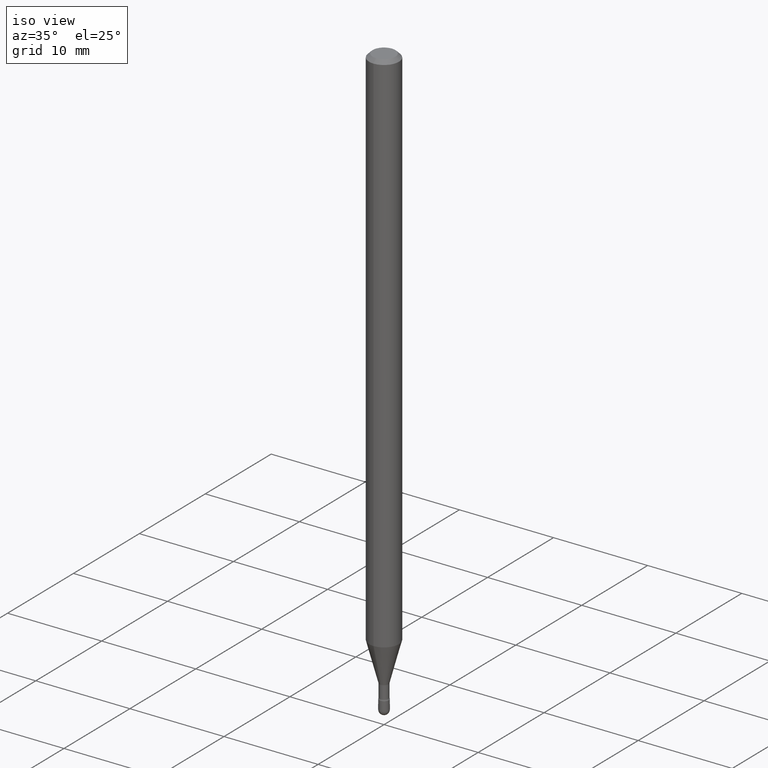
[diagram: clean part render]
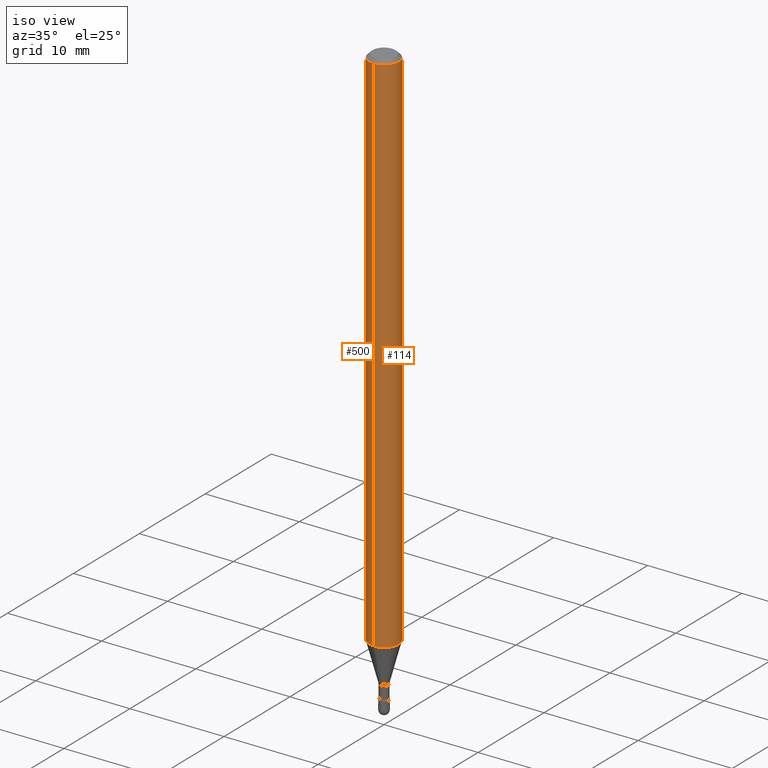
[diagram: same view with one multi-face feature highlighted, each face labeled with its STEP entity id]
A machine part, iso view. The highlighted faces form ONE feature: a constant-radius fillet chain: 2 tangent blend faces with common blend radius 1.5875 mm. The faces share edges in the B-rep.
Their STEP definitions:
[1] entity #500 (Cylinder):
#16 = EDGE_CURVE ( 'NONE', #71, #459, #150, .T. ) ;
#19 = AXIS2_PLACEMENT_3D ( 'NONE', #499, #540, #543 ) ;
#38 = DIRECTION ( 'NONE',  ( -6.982962677686265922E-15, -1.000000000000000000, 4.370956789862821150E-15 ) ) ;
#57 = LINE ( 'NONE', #156, #496 ) ;
#59 = EDGE_CURVE ( 'NONE', #71, #119, #348, .T. ) ;
#64 = CYLINDRICAL_SURFACE ( 'NONE', #19, 0.06250000000000000000 ) ;
#71 = VERTEX_POINT ( 'NONE', #173 ) ;
#72 = DIRECTION ( 'NONE',  ( -6.982962677686265922E-15, -1.000000000000000000, 3.483106191921935554E-15 ) ) ;
#73 = CARTESIAN_POINT ( 'NONE',  ( -4.364351673553912750E-16, -0.06250000000000005551, -0.01499999999999986587 ) ) ;
#80 = CARTESIAN_POINT ( 'NONE',  ( 4.440892098501171462E-16, 0.06249999999999995143, -0.01500000000000030129 ) ) ;
#88 = ORIENTED_EDGE ( 'NONE', *, *, #130, .F. ) ;
#101 = EDGE_CURVE ( 'NONE', #119, #460, #57, .T. ) ;
#117 = VECTOR ( 'NONE', #492, 39.37007874015748143 ) ;
#119 = VERTEX_POINT ( 'NONE', #418 ) ;
#126 = FACE_OUTER_BOUND ( 'NONE', #493, .T. ) ;
#130 = EDGE_CURVE ( 'NONE', #459, #460, #556, .T. ) ;
#150 = LINE ( 'NONE', #315, #117 ) ;
#156 = CARTESIAN_POINT ( 'NONE',  ( -4.364351673553916201E-16, -0.06250000000000000000, 6.962952100205223829E-16 ) ) ;
#173 = CARTESIAN_POINT ( 'NONE',  ( 4.440892098501165545E-16, 0.06249999999999224232, -2.216909379709240735 ) ) ;
#175 = DIRECTION ( 'NONE',  ( -2.445421573966572073E-29, 3.491548978068420720E-15, 1.000000000000000000 ) ) ;
#185 = ORIENTED_EDGE ( 'NONE', *, *, #59, .T. ) ;
#270 = ORIENTED_EDGE ( 'NONE', *, *, #101, .T. ) ;
#315 = CARTESIAN_POINT ( 'NONE',  ( 4.440892098500625669E-16, 0.06250000000000000000, 2.598515877619697929E-16 ) ) ;
#321 = ORIENTED_EDGE ( 'NONE', *, *, #16, .F. ) ;
#323 = DIRECTION ( 'NONE',  ( -2.445421573966572073E-29, 3.491548978068420720E-15, 1.000000000000000000 ) ) ;
#331 = DIRECTION ( 'NONE',  ( -2.445421573966572073E-29, 3.491548978068420720E-15, 1.000000000000000000 ) ) ;
#348 = CIRCLE ( 'NONE', #548, 0.06250000000000000000 ) ;
#370 = CARTESIAN_POINT ( 'NONE',  ( 3.668132360949878113E-31, -5.237323467102660391E-17, -0.01500000000000008271 ) ) ;
#392 = CARTESIAN_POINT ( 'NONE',  ( 5.421278024669828095E-29, -7.740447679194095170E-15, -2.216909379709240735 ) ) ;
#406 = AXIS2_PLACEMENT_3D ( 'NONE', #370, #331, #72 ) ;
#418 = CARTESIAN_POINT ( 'NONE',  ( -4.364351673553375831E-16, -0.06250000000000775768, -2.216909379709240291 ) ) ;
#459 = VERTEX_POINT ( 'NONE', #80 ) ;
#460 = VERTEX_POINT ( 'NONE', #73 ) ;
#492 = DIRECTION ( 'NONE',  ( -2.445421573966572073E-29, 3.491548978068420720E-15, 1.000000000000000000 ) ) ;
#493 = EDGE_LOOP ( 'NONE', ( #321, #185, #270, #88 ) ) ;
#496 = VECTOR ( 'NONE', #323, 39.37007874015748143 ) ;
#499 = CARTESIAN_POINT ( 'NONE',  ( -1.169113584055446105E-44, 1.669184350826100908E-30, 4.780733988912460139E-16 ) ) ;
#500 = ADVANCED_FACE ( 'NONE', ( #126 ), #64, .T. ) ;
#540 = DIRECTION ( 'NONE',  ( -2.445421573966572073E-29, 3.491548978068420720E-15, 1.000000000000000000 ) ) ;
#543 = DIRECTION ( 'NONE',  ( -6.982962677686265922E-15, -1.000000000000000000, 3.491548978068421114E-15 ) ) ;
#548 = AXIS2_PLACEMENT_3D ( 'NONE', #392, #175, #38 ) ;
#556 = CIRCLE ( 'NONE', #406, 0.06250000000000000000 ) ;
[2] entity #114 (Cylinder):
#16 = EDGE_CURVE ( 'NONE', #71, #459, #150, .T. ) ;
#25 = DIRECTION ( 'NONE',  ( -6.982962677686265922E-15, -1.000000000000000000, 4.370956789862821150E-15 ) ) ;
#57 = LINE ( 'NONE', #156, #496 ) ;
#71 = VERTEX_POINT ( 'NONE', #173 ) ;
#73 = CARTESIAN_POINT ( 'NONE',  ( -4.364351673553912750E-16, -0.06250000000000005551, -0.01499999999999986587 ) ) ;
#80 = CARTESIAN_POINT ( 'NONE',  ( 4.440892098501171462E-16, 0.06249999999999995143, -0.01500000000000030129 ) ) ;
#101 = EDGE_CURVE ( 'NONE', #119, #460, #57, .T. ) ;
#113 = EDGE_CURVE ( 'NONE', #460, #459, #206, .T. ) ;
#114 = ADVANCED_FACE ( 'NONE', ( #527 ), #530, .T. ) ;
#117 = VECTOR ( 'NONE', #492, 39.37007874015748143 ) ;
#119 = VERTEX_POINT ( 'NONE', #418 ) ;
#128 = ORIENTED_EDGE ( 'NONE', *, *, #16, .T. ) ;
#135 = ORIENTED_EDGE ( 'NONE', *, *, #387, .T. ) ;
#142 = CARTESIAN_POINT ( 'NONE',  ( -1.169113584055446105E-44, 1.669184350826100908E-30, 4.780733988912460139E-16 ) ) ;
#150 = LINE ( 'NONE', #315, #117 ) ;
#156 = CARTESIAN_POINT ( 'NONE',  ( -4.364351673553916201E-16, -0.06250000000000000000, 6.962952100205223829E-16 ) ) ;
#160 = ORIENTED_EDGE ( 'NONE', *, *, #101, .F. ) ;
#165 = CARTESIAN_POINT ( 'NONE',  ( 5.421278024669828095E-29, -7.740447679194095170E-15, -2.216909379709240735 ) ) ;
#173 = CARTESIAN_POINT ( 'NONE',  ( 4.440892098501165545E-16, 0.06249999999999224232, -2.216909379709240735 ) ) ;
#183 = CARTESIAN_POINT ( 'NONE',  ( 3.668132360949878113E-31, -5.237323467102660391E-17, -0.01500000000000008271 ) ) ;
#190 = AXIS2_PLACEMENT_3D ( 'NONE', #142, #309, #483 ) ;
#206 = CIRCLE ( 'NONE', #414, 0.06250000000000000000 ) ;
#255 = EDGE_LOOP ( 'NONE', ( #135, #128, #432, #160 ) ) ;
#266 = CIRCLE ( 'NONE', #359, 0.06250000000000000000 ) ;
#309 = DIRECTION ( 'NONE',  ( -2.445421573966572073E-29, 3.491548978068420720E-15, 1.000000000000000000 ) ) ;
#315 = CARTESIAN_POINT ( 'NONE',  ( 4.440892098500625669E-16, 0.06250000000000000000, 2.598515877619697929E-16 ) ) ;
#323 = DIRECTION ( 'NONE',  ( -2.445421573966572073E-29, 3.491548978068420720E-15, 1.000000000000000000 ) ) ;
#332 = DIRECTION ( 'NONE',  ( -2.445421573966572073E-29, 3.491548978068420720E-15, 1.000000000000000000 ) ) ;
#353 = DIRECTION ( 'NONE',  ( -6.982962677686265922E-15, -1.000000000000000000, 3.483106191921935554E-15 ) ) ;
#359 = AXIS2_PLACEMENT_3D ( 'NONE', #165, #332, #25 ) ;
#387 = EDGE_CURVE ( 'NONE', #119, #71, #266, .T. ) ;
#414 = AXIS2_PLACEMENT_3D ( 'NONE', #183, #566, #353 ) ;
#418 = CARTESIAN_POINT ( 'NONE',  ( -4.364351673553375831E-16, -0.06250000000000775768, -2.216909379709240291 ) ) ;
#432 = ORIENTED_EDGE ( 'NONE', *, *, #113, .F. ) ;
#459 = VERTEX_POINT ( 'NONE', #80 ) ;
#460 = VERTEX_POINT ( 'NONE', #73 ) ;
#483 = DIRECTION ( 'NONE',  ( -6.982962677686265922E-15, -1.000000000000000000, 3.491548978068421114E-15 ) ) ;
#492 = DIRECTION ( 'NONE',  ( -2.445421573966572073E-29, 3.491548978068420720E-15, 1.000000000000000000 ) ) ;
#496 = VECTOR ( 'NONE', #323, 39.37007874015748143 ) ;
#527 = FACE_OUTER_BOUND ( 'NONE', #255, .T. ) ;
#530 = CYLINDRICAL_SURFACE ( 'NONE', #190, 0.06250000000000000000 ) ;
#566 = DIRECTION ( 'NONE',  ( -2.445421573966572073E-29, 3.491548978068420720E-15, 1.000000000000000000 ) ) ;